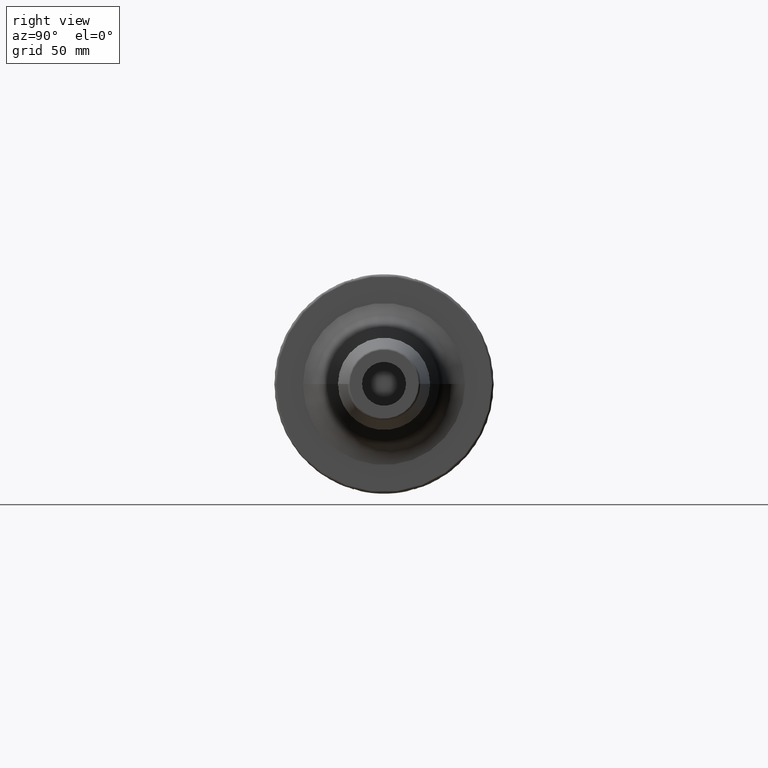
[diagram: clean part render]
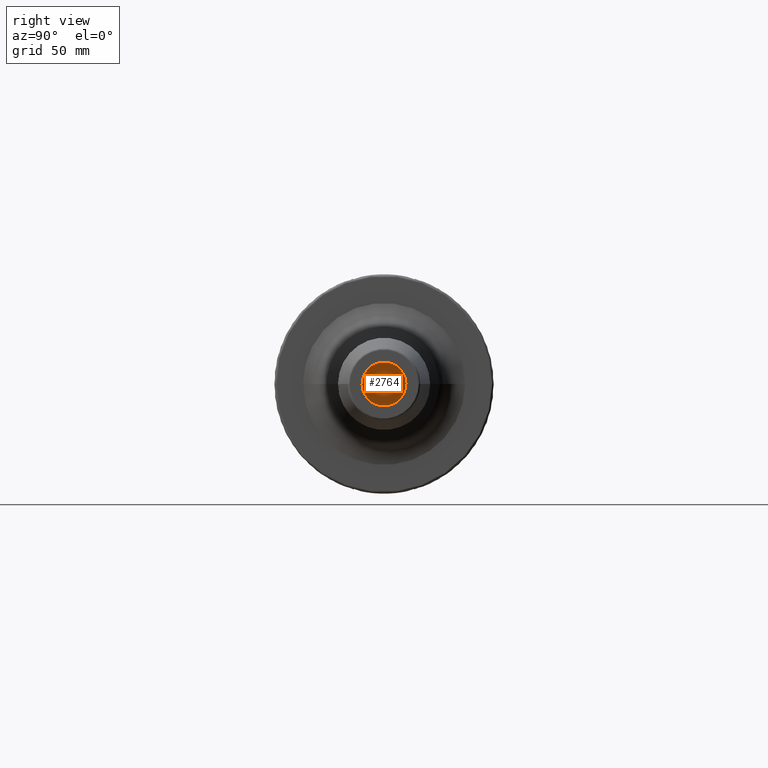
[diagram: same view with one face highlighted and labeled with its STEP entity id]
A machine part, right view. The second image highlights one B-rep face of the part: STEP entity #2764.
In plain terms, the highlighted planar face has unit normal (1, 0, 0).
Its self-contained STEP definition (entity closure, byte-faithful):
#958=CARTESIAN_POINT('',(1.48E2,0.E0,0.E0));
#959=DIRECTION('',(1.E0,0.E0,0.E0));
#960=DIRECTION('',(0.E0,-1.E0,0.E0));
#961=AXIS2_PLACEMENT_3D('',#958,#959,#960);
#963=CARTESIAN_POINT('',(1.48E2,0.E0,0.E0));
#964=DIRECTION('',(-1.E0,0.E0,0.E0));
#965=DIRECTION('',(0.E0,-1.E0,0.E0));
#966=AXIS2_PLACEMENT_3D('',#963,#964,#965);
#1415=CARTESIAN_POINT('',(1.48E2,-1.E1,0.E0));
#1416=CARTESIAN_POINT('',(1.48E2,1.E1,0.E0));
#1417=VERTEX_POINT('',#1415);
#1418=VERTEX_POINT('',#1416);
#2755=CARTESIAN_POINT('',(1.48E2,0.E0,0.E0));
#2756=DIRECTION('',(1.E0,0.E0,0.E0));
#2757=DIRECTION('',(0.E0,-1.E0,0.E0));
#2758=AXIS2_PLACEMENT_3D('',#2755,#2756,#2757);
#2759=PLANE('',#2758);
#2760=ORIENTED_EDGE('',*,*,#2749,.F.);
#2761=ORIENTED_EDGE('',*,*,#2735,.T.);
#2762=EDGE_LOOP('',(#2760,#2761));
#2763=FACE_OUTER_BOUND('',#2762,.F.);
#2764=ADVANCED_FACE('',(#2763),#2759,.T.);
#962=CIRCLE('',#961,1.E1);
#967=CIRCLE('',#966,1.E1);
#2735=EDGE_CURVE('',#1417,#1418,#967,.T.);
#2749=EDGE_CURVE('',#1417,#1418,#962,.T.);